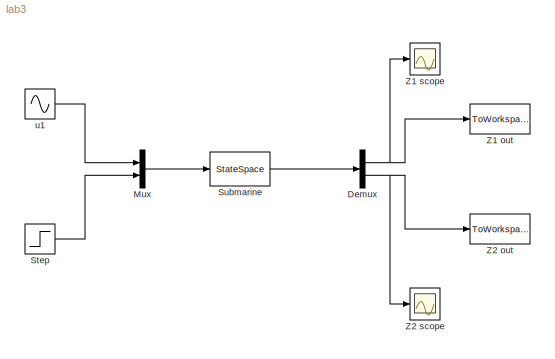
MODEL lab3
KIND model
BLOCK [Demux] Demux
  DisplayOption = bar
  Outputs = 2
  Ports = [1, 2]
  SID = 6
BLOCK [Mux] Mux
  DisplayOption = bar
  Inputs = 2
  Ports = [2, 1]
  SID = 5
BLOCK [Step] Step
  After = .1
  SID = 3
  SampleTime = 0
BLOCK [StateSpace] Submarine
  A = A
  B = B
  C = C
  D = D
  SID = 1
  X0 = [-.1,0,.1,0]
BLOCK [ToWorkspace] Z1 out
  MaxDataPoints = inf
  Ports = [1]
  SID = 4
  SampleTime = -1
  SaveFormat = Array
  VariableName = Z1
BLOCK [Scope] Z1 scope
  DataFormat = StructureWithTime
  Floating = off
  NumInputPorts = 1
  Ports = [1]
  SID = 8
  SampleTime = 0
BLOCK [ToWorkspace] Z2 out
  MaxDataPoints = inf
  Ports = [1]
  SID = 7
  SampleTime = -1
  SaveFormat = Array
  VariableName = Z2
BLOCK [Scope] Z2 scope
  DataFormat = StructureWithTime
  Floating = off
  NumInputPorts = 1
  Ports = [1]
  SID = 9
  SampleTime = 0
  SaveName = ScopeData1
BLOCK [Sin] u1
  Frequency = 7
  Ports = [0, 1]
  SID = 2
  SampleTime = 0
NET Demux:1 -> Z1 out:1, Z1 scope:1
NET Demux:2 -> Z2 out:1, Z2 scope:1
LINE Mux:1 -> Submarine:1
LINE Step:1 -> Mux:2
LINE Submarine:1 -> Demux:1
LINE u1:1 -> Mux:1
note: NET lines group one-source signal fan-out (src -> all destinations, sorted); 1:1 wires keep LINE
